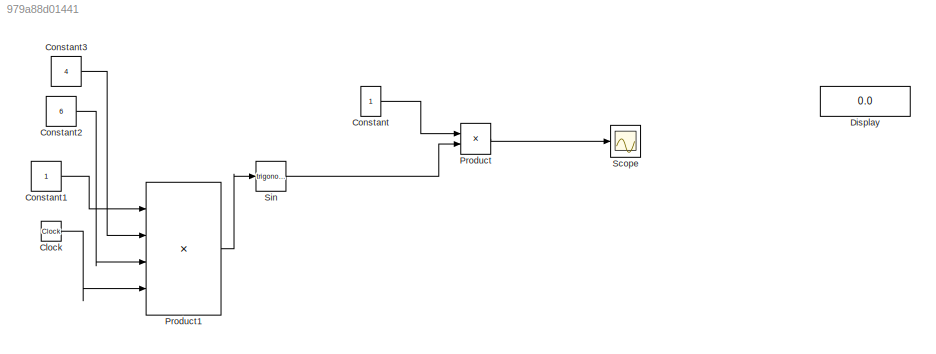
MODEL slx_979a88d01441
KIND model
CONFIG AbsTol = auto
CONFIG EnableMultiTasking = off
CONFIG MaxStep = auto
CONFIG MinStep = auto
CONFIG RelTol = 1e-3
CONFIG SampleTimeConstraint = Unconstrained
CONFIG SolverName = VariableStepAuto
CONFIG StartTime = 0.0
CONFIG StopTime = 10.0
BLOCK [Clock] Clock
BLOCK [Constant] Constant
BLOCK [Constant] Constant1
BLOCK [Constant] Constant2
  Value = 6
BLOCK [Constant] Constant3
  Value = 4
BLOCK [Display] Display
  Decimation = 1
BLOCK [Product] Product
BLOCK [Product] Product1
  Inputs = 4
BLOCK [Scope] Scope
  Floating = off
  NumInputPorts = 1
  ScopeSpecificationString = Simulink.scopes.TimeScopeBlockCfg('CurrentConfiguration', extmgr.ConfigurationSet(extmgr.Configuration('Core','General UI',true),extmgr.Configuration('Core','Source UI',true),extmgr.Configuration('Sources','WiredSimulink',true,'DataLoggingVariableName','ScopeData1'),extmgr.Configuration('Visuals','Time Domain',true,'SerializedDisplays',{struct('MinYLimReal','-1.24935','MaxYLimReal','1.24438','YLab...<+1366ch>
BLOCK [Trigonometry] Sin
LINE Clock:1 -> Product1:4
LINE Constant1:1 -> Product1:1
LINE Constant2:1 -> Product1:3
LINE Constant3:1 -> Product1:2
LINE Constant:1 -> Product:1
LINE Product1:1 -> Sin:1
LINE Product:1 -> Scope:1
LINE Sin:1 -> Product:2
